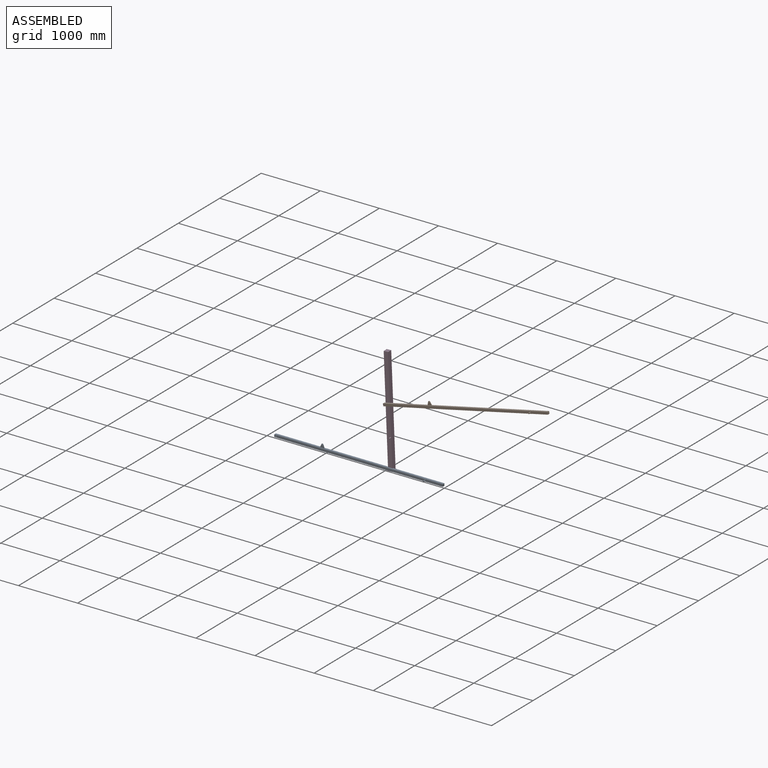
[diagram: assembled view]
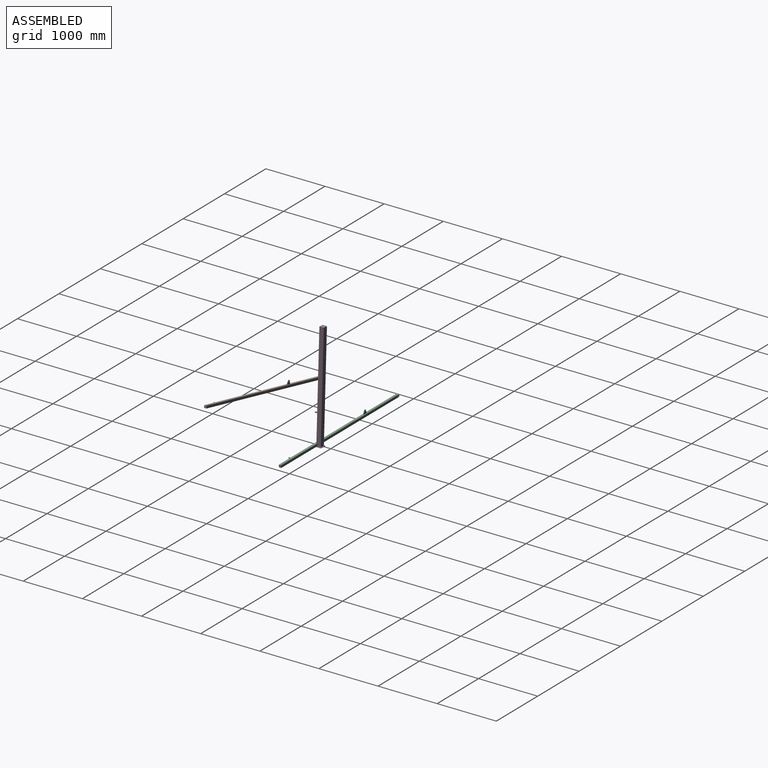
[diagram: assembled view, second angle]
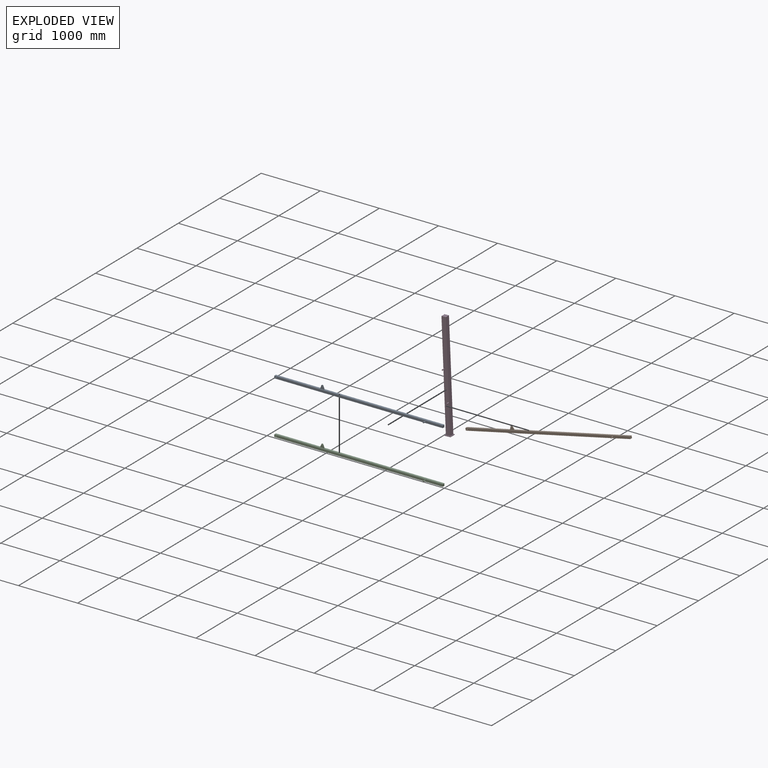
[diagram: exploded view]
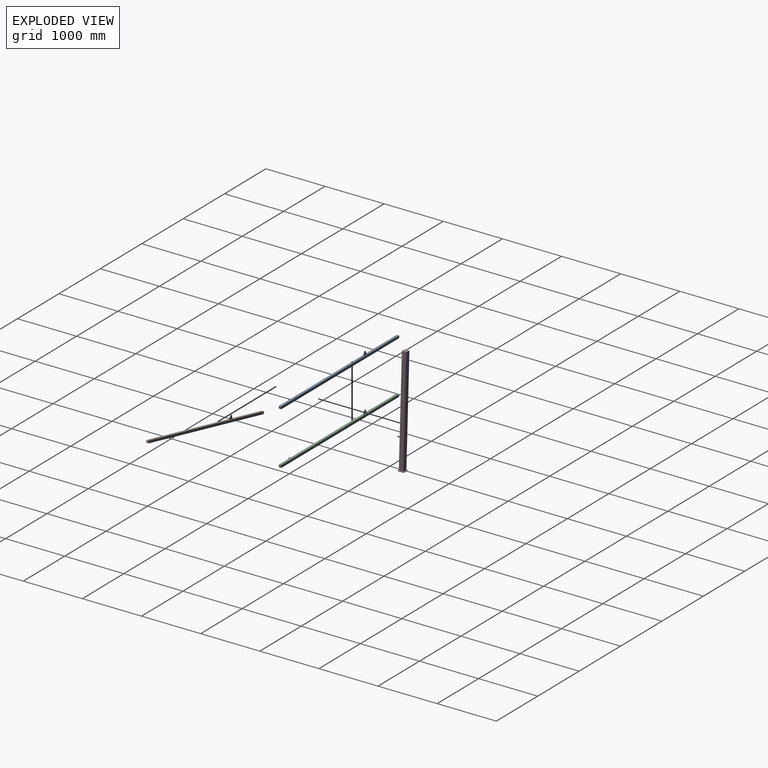
[diagram: exploded view, second angle]
ASSEMBLY  parts=4 mates=2
PART A: 15 faces, bbox 2850x81x105 mm
  f0: plane 2850x40mm, normal (0,1,0), area 113685.8mm2, adj f1,f3,f4,f5,f6
  f1: plane 2850x40mm, normal (0,0,1), area 113250mm2, adj f0,f2,f4,f5,f9,f11,f13,f14
  f2: plane 2850x40mm, normal (0,-1,0), area 113371.7mm2, adj f1,f3,f4,f5,f6,f7
  f3: plane 2850x40mm, normal (0,0,-1), area 114000mm2, adj f0,f2,f4,f5
  f4: plane 40x40mm, normal (1,0,0), area 1600mm2, adj f0,f1,f2,f3
  f5: plane 40x40mm, normal (-1,0,0), area 1600mm2, adj f0,f1,f2,f3
  f6: cylinder r=10mm len=40mm, axis (0,-1,0), area 2513.3mm2, adj f0,f2
  f7: cylinder r=10mm len=41mm, axis (0,1,0), area 2576.1mm2, adj f2,f8
  f8: plane 20x20mm, normal (0,-1,0), area 314.2mm2, adj f7
  f9: plane 55.86x23.69mm, normal (0.92,0,0.39), area 606.7mm2, adj f1,f10,f13,f14
  f10: cylinder r=15mm len=27.62mm, axis (0,1,0), area 350.9mm2, adj f9,f11,f13,f14
  f11: plane 55.86x23.69mm, normal (-0.92,0,0.39), area 606.7mm2, adj f1,f10,f13,f14
  f12: cylinder r=6mm len=12mm, axis (0,1,0), area 377mm2, adj f13,f14
  f13: plane 75x65mm, normal (0,-1,0), area 2935.2mm2, adj f1,f9,f10,f11,f12
  f14: plane 75x65mm, normal (0,1,0), area 2935.2mm2, adj f1,f9,f10,f11,f12
PART B: same geometry as A
PART C: same geometry as A
PART D: 15 faces, bbox 100x128.5x1810 mm
  f0: plane 75x75mm, normal (0,0,1), area 5625mm2, adj f1,f2,f3,f4
  f1: plane 1800x75mm, normal (0,-1,0), area 134371.7mm2, adj f0,f2,f3,f5,f7,f9
  f2: plane 1800x75mm, normal (1,0,0), area 135000mm2, adj f0,f1,f4,f9
  f3: plane 1800x75mm, normal (-1,0,0), area 135000mm2, adj f0,f1,f4,f9
  f4: plane 1800x75mm, normal (0,1,0), area 135000mm2, adj f0,f2,f3,f9
  f5: cylinder r=10mm len=41mm, axis (0,1,0), area 2576.1mm2, adj f1,f6
  f6: plane 20x20mm, normal (0,-1,0), area 314.2mm2, adj f5
  f7: cylinder r=10mm len=41mm, axis (0,1,0), area 2576.1mm2, adj f1,f8
  f8: plane 20x20mm, normal (0,-1,0), area 314.2mm2, adj f7
  f9: plane 100x100mm, normal (0,0,1), area 4375mm2, adj f1,f2,f3,f4,f10,f11,f12,f13
  f10: plane 100x10mm, normal (0,-1,0), area 1000mm2, adj f9,f11,f13,f14
  f11: plane 100x10mm, normal (-1,0,0), area 1000mm2, adj f9,f10,f12,f14
  f12: plane 100x10mm, normal (0,1,0), area 1000mm2, adj f9,f11,f13,f14
  f13: plane 100x10mm, normal (1,0,0), area 1000mm2, adj f9,f10,f12,f14
  f14: plane 100x100mm, normal (0,0,-1), area 10000mm2, adj f10,f11,f12,f13
PLACE A t=(-1783.68,-111.73,79.78)mm
PLACE B rot(axis=(0,-1,0),12.5deg) t=(67.45,-126.77,1051.47)mm
PLACE C t=(-1783.68,-111.73,79.78)mm
PLACE D rot(axis=(0,-1,0),2.4deg) t=(197.99,-68.27,60.39)mm fixed
MATE planar B.f2 <-> D.f5  axis (0,-1,0) through (1459.61,-146.77,1359.19)mm
MATE cylindrical D.f5 <-> B.f6  axis (0,-1,0) through (91.86,-146.77,1056.86)mm
